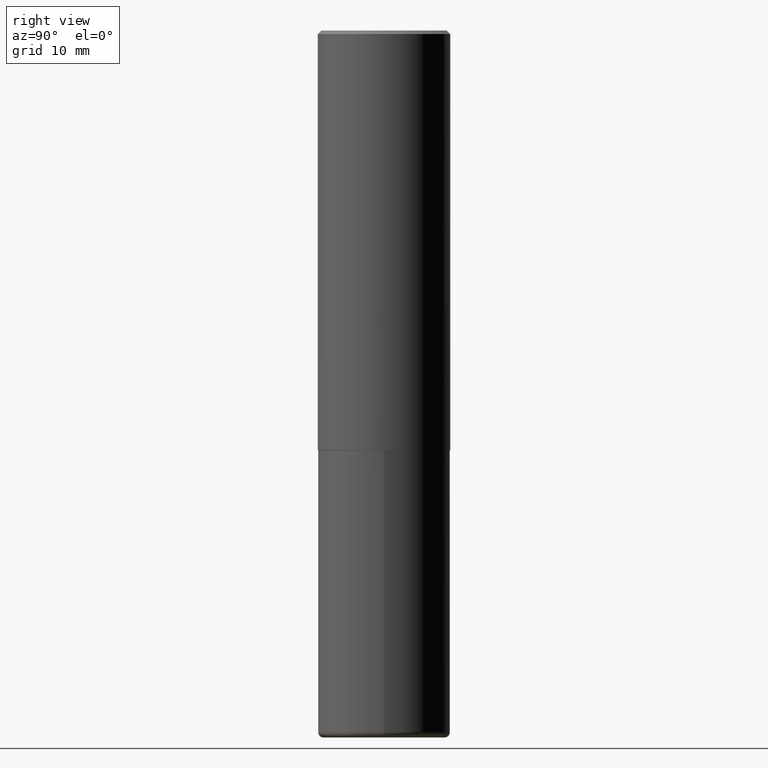
[diagram: clean part render]
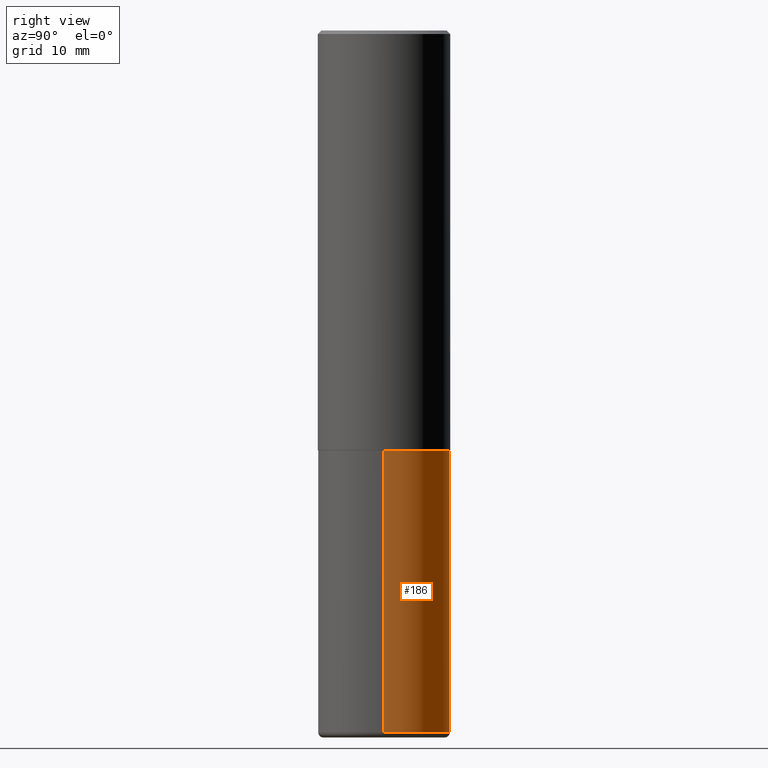
[diagram: same view with one face highlighted and labeled with its STEP entity id]
A machine part, right view. The second image highlights one B-rep face of the part: STEP entity #186.
In plain terms, the highlighted cylindrical surface (partial cylindrical patch) has radius 9.525 mm, axis along (-0, 0, 1).
Its self-contained STEP definition (entity closure, byte-faithful):
#16 = ORIENTED_EDGE ( 'NONE', *, *, #153, .F. ) ;
#21 = CIRCLE ( 'NONE', #168, 0.3750000000000000555 ) ;
#31 = DIRECTION ( 'NONE',  ( -2.445468806185136597E-29, 3.491481338843145583E-15, 1.000000000000000000 ) ) ;
#33 = CARTESIAN_POINT ( 'NONE',  ( 0.000000000000000000, 0.000000000000000000, 0.000000000000000000 ) ) ;
#40 = CARTESIAN_POINT ( 'NONE',  ( -0.3749999999999999445, -1.119664565610691011E-14, -3.969999999999999307 ) ) ;
#44 = EDGE_LOOP ( 'NONE', ( #391, #171, #16, #205 ) ) ;
#49 = DIRECTION ( 'NONE',  ( 1.000000000000000000, -6.982962677686266711E-15, 0.000000000000000000 ) ) ;
#50 = VERTEX_POINT ( 'NONE', #40 ) ;
#56 = EDGE_CURVE ( 'NONE', #255, #50, #21, .T. ) ;
#64 = FACE_OUTER_BOUND ( 'NONE', #44, .T. ) ;
#67 = DIRECTION ( 'NONE',  ( 1.000000000000000000, -6.982962677686266711E-15, 0.000000000000000000 ) ) ;
#79 = CARTESIAN_POINT ( 'NONE',  ( 5.807988414689699417E-29, -8.292268179752470118E-15, -2.375000000000000000 ) ) ;
#91 = AXIS2_PLACEMENT_3D ( 'NONE', #79, #109, #49 ) ;
#99 = CYLINDRICAL_SURFACE ( 'NONE', #411, 0.3750000000000000555 ) ;
#109 = DIRECTION ( 'NONE',  ( -2.445468806185136597E-29, 3.491481338843145583E-15, 1.000000000000000000 ) ) ;
#113 = VERTEX_POINT ( 'NONE', #267 ) ;
#153 = EDGE_CURVE ( 'NONE', #306, #113, #275, .T. ) ;
#168 = AXIS2_PLACEMENT_3D ( 'NONE', #417, #31, #67 ) ;
#171 = ORIENTED_EDGE ( 'NONE', *, *, #206, .T. ) ;
#186 = ADVANCED_FACE ( 'NONE', ( #64 ), #99, .T. ) ;
#188 = CARTESIAN_POINT ( 'NONE',  ( 0.3750000000000000555, -2.618611004132350016E-15, 1.828566290923476203E-29 ) ) ;
#193 = DIRECTION ( 'NONE',  ( -2.445468806185136877E-29, 3.491481338843145188E-15, 1.000000000000000000 ) ) ;
#197 = EDGE_CURVE ( 'NONE', #255, #306, #290, .T. ) ;
#205 = ORIENTED_EDGE ( 'NONE', *, *, #197, .F. ) ;
#206 = EDGE_CURVE ( 'NONE', #50, #113, #268, .T. ) ;
#225 = CARTESIAN_POINT ( 'NONE',  ( -0.3750000000000000555, 2.664535259100376091E-15, -1.844600658845589598E-29 ) ) ;
#246 = DIRECTION ( 'NONE',  ( -2.445468806185136877E-29, 3.491481338843145188E-15, 1.000000000000000000 ) ) ;
#255 = VERTEX_POINT ( 'NONE', #262 ) ;
#262 = CARTESIAN_POINT ( 'NONE',  ( 0.3749999999999999445, -1.647979191933963740E-14, -3.969999999999999307 ) ) ;
#267 = CARTESIAN_POINT ( 'NONE',  ( -0.3750000000000000555, -8.412189288379502265E-15, -2.375000000000000000 ) ) ;
#268 = LINE ( 'NONE', #225, #396 ) ;
#275 = CIRCLE ( 'NONE', #91, 0.3750000000000000555 ) ;
#290 = LINE ( 'NONE', #188, #327 ) ;
#297 = DIRECTION ( 'NONE',  ( -2.445468806185136597E-29, 3.491481338843145583E-15, 1.000000000000000000 ) ) ;
#306 = VERTEX_POINT ( 'NONE', #377 ) ;
#327 = VECTOR ( 'NONE', #246, 39.37007874015748143 ) ;
#377 = CARTESIAN_POINT ( 'NONE',  ( 0.3750000000000000555, -1.091087918388482013E-14, -2.375000000000000000 ) ) ;
#385 = DIRECTION ( 'NONE',  ( 1.000000000000000000, -6.982962677686265922E-15, 4.876176775795935793E-29 ) ) ;
#391 = ORIENTED_EDGE ( 'NONE', *, *, #56, .T. ) ;
#396 = VECTOR ( 'NONE', #193, 39.37007874015748143 ) ;
#411 = AXIS2_PLACEMENT_3D ( 'NONE', #33, #297, #385 ) ;
#417 = CARTESIAN_POINT ( 'NONE',  ( 9.708511160554990630E-29, -1.386118091520728581E-14, -3.969999999999999307 ) ) ;